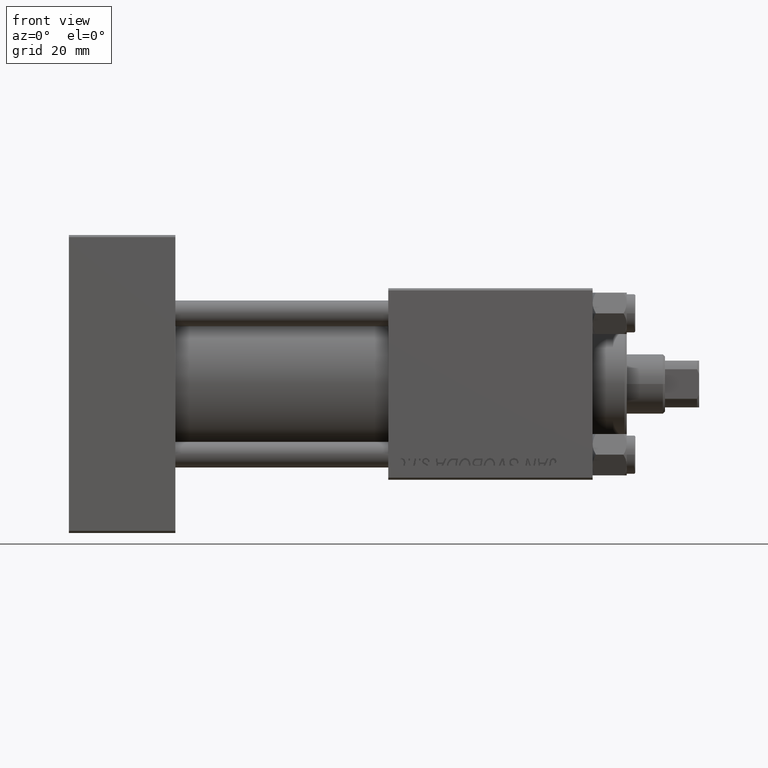
[diagram: clean part render]
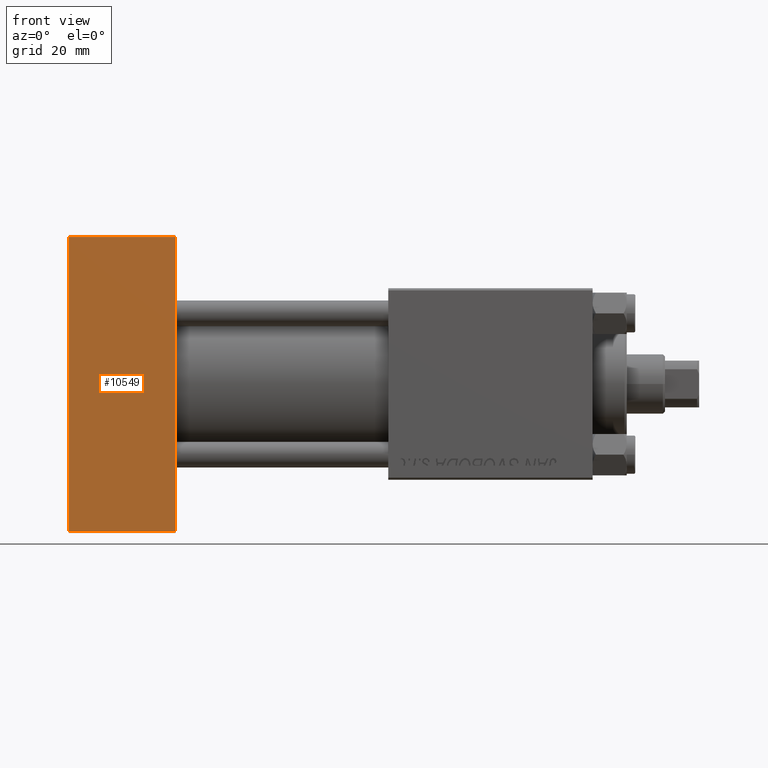
[diagram: same view with one face highlighted and labeled with its STEP entity id]
A machine part, front view. The second image highlights one B-rep face of the part: STEP entity #10549.
In plain terms, the highlighted planar face has unit normal (0, 1, 0).
Its self-contained STEP definition (entity closure, byte-faithful):
#2651 = VERTEX_POINT ( 'NONE', #26387 ) ;
#7007 = LINE ( 'NONE', #19611, #46030 ) ;
#7589 = LINE ( 'NONE', #47824, #40880 ) ;
#8799 = DIRECTION ( 'NONE',  ( 0.000000000000000000, 0.000000000000000000, -1.000000000000000000 ) ) ;
#10549 = ADVANCED_FACE ( 'NONE', ( #24971 ), #33367, .F. ) ;
#11208 = DIRECTION ( 'NONE',  ( 1.000000000000000000, 0.000000000000000000, 0.000000000000000000 ) ) ;
#11921 = CARTESIAN_POINT ( 'NONE',  ( 25.00000000000000000, -22.49999999999999645, -34.50000000000000000 ) ) ;
#13448 = CARTESIAN_POINT ( 'NONE',  ( 25.00000000000000000, -22.49999999999999645, 34.50000000000000000 ) ) ;
#17062 = VERTEX_POINT ( 'NONE', #44853 ) ;
#17911 = LINE ( 'NONE', #13448, #29045 ) ;
#19611 = CARTESIAN_POINT ( 'NONE',  ( 25.00000000000000000, -22.49999999999999645, -34.50000000000000000 ) ) ;
#21296 = CARTESIAN_POINT ( 'NONE',  ( 25.00000000000000000, -22.49999999999999645, 35.00000000000000000 ) ) ;
#21543 = DIRECTION ( 'NONE',  ( -0.000000000000000000, 1.000000000000000000, 0.000000000000000000 ) ) ;
#24502 = EDGE_CURVE ( 'NONE', #2651, #30184, #7589, .T. ) ;
#24971 = FACE_OUTER_BOUND ( 'NONE', #49182, .T. ) ;
#26373 = EDGE_CURVE ( 'NONE', #30184, #45650, #7007, .T. ) ;
#26387 = CARTESIAN_POINT ( 'NONE',  ( 0.000000000000000000, -22.49999999999999645, 34.50000000000000000 ) ) ;
#29045 = VECTOR ( 'NONE', #33949, 1000.000000000000000 ) ;
#29296 = LINE ( 'NONE', #45341, #42010 ) ;
#29958 = DIRECTION ( 'NONE',  ( 0.000000000000000000, -0.000000000000000000, 1.000000000000000000 ) ) ;
#30184 = VERTEX_POINT ( 'NONE', #45736 ) ;
#31420 = ORIENTED_EDGE ( 'NONE', *, *, #26373, .T. ) ;
#33367 = PLANE ( 'NONE',  #41377 ) ;
#33949 = DIRECTION ( 'NONE',  ( -1.000000000000000000, 0.000000000000000000, 0.000000000000000000 ) ) ;
#34970 = EDGE_CURVE ( 'NONE', #17062, #2651, #17911, .T. ) ;
#40880 = VECTOR ( 'NONE', #43879, 1000.000000000000000 ) ;
#41377 = AXIS2_PLACEMENT_3D ( 'NONE', #21296, #21543, #29958 ) ;
#42010 = VECTOR ( 'NONE', #8799, 1000.000000000000000 ) ;
#43879 = DIRECTION ( 'NONE',  ( 0.000000000000000000, 0.000000000000000000, -1.000000000000000000 ) ) ;
#43882 = ORIENTED_EDGE ( 'NONE', *, *, #24502, .T. ) ;
#44398 = ORIENTED_EDGE ( 'NONE', *, *, #34970, .T. ) ;
#44609 = EDGE_CURVE ( 'NONE', #17062, #45650, #29296, .T. ) ;
#44853 = CARTESIAN_POINT ( 'NONE',  ( 25.00000000000000000, -22.49999999999999645, 34.50000000000000000 ) ) ;
#45341 = CARTESIAN_POINT ( 'NONE',  ( 25.00000000000000000, -22.49999999999999645, 35.00000000000000000 ) ) ;
#45650 = VERTEX_POINT ( 'NONE', #11921 ) ;
#45736 = CARTESIAN_POINT ( 'NONE',  ( 0.000000000000000000, -22.49999999999999645, -34.50000000000000000 ) ) ;
#46030 = VECTOR ( 'NONE', #11208, 1000.000000000000000 ) ;
#47824 = CARTESIAN_POINT ( 'NONE',  ( 0.000000000000000000, -22.49999999999999645, 35.00000000000000000 ) ) ;
#49182 = EDGE_LOOP ( 'NONE', ( #43882, #31420, #51118, #44398 ) ) ;
#51118 = ORIENTED_EDGE ( 'NONE', *, *, #44609, .F. ) ;